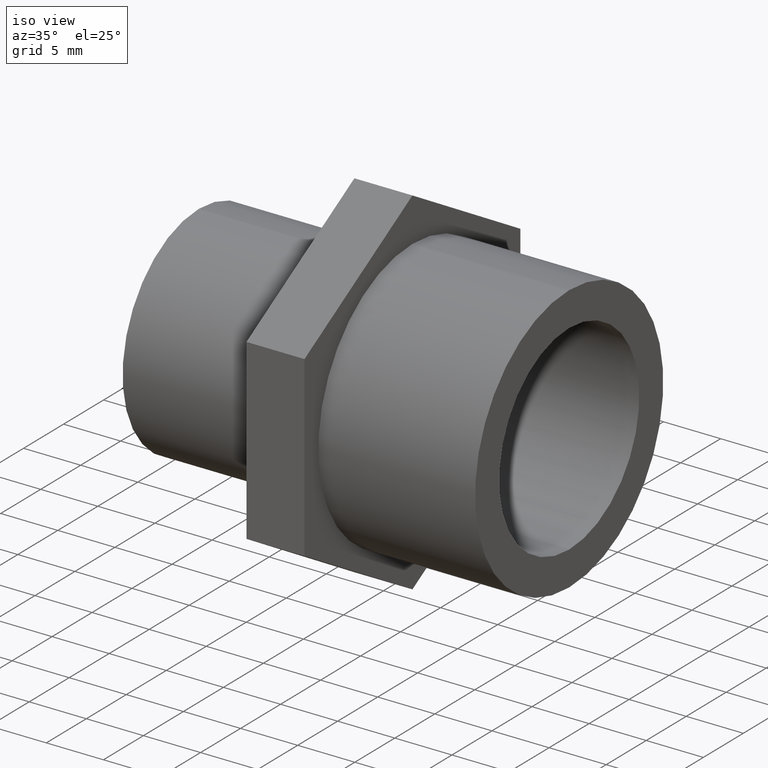
[diagram: clean part render]
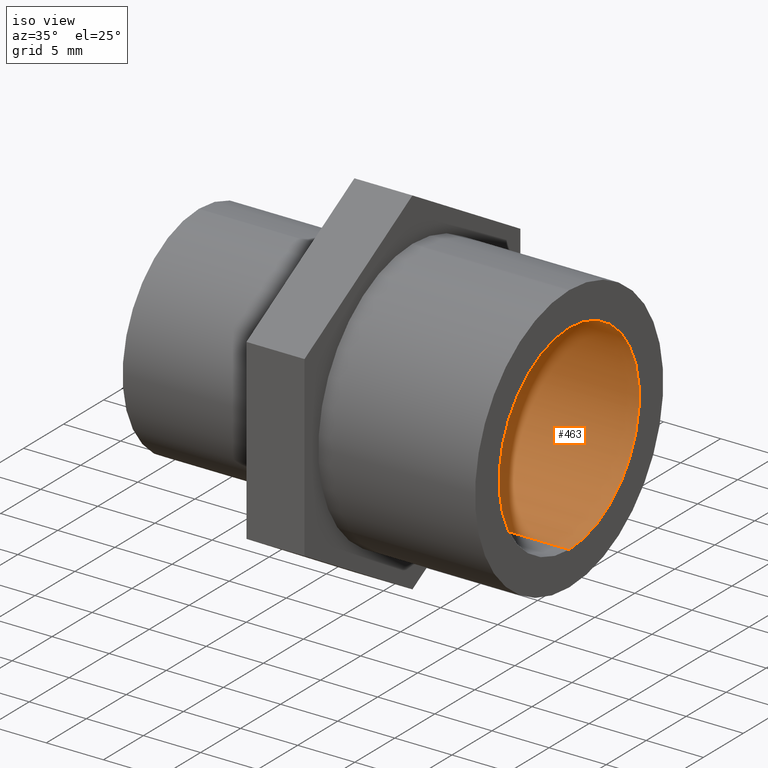
[diagram: same view with one face highlighted and labeled with its STEP entity id]
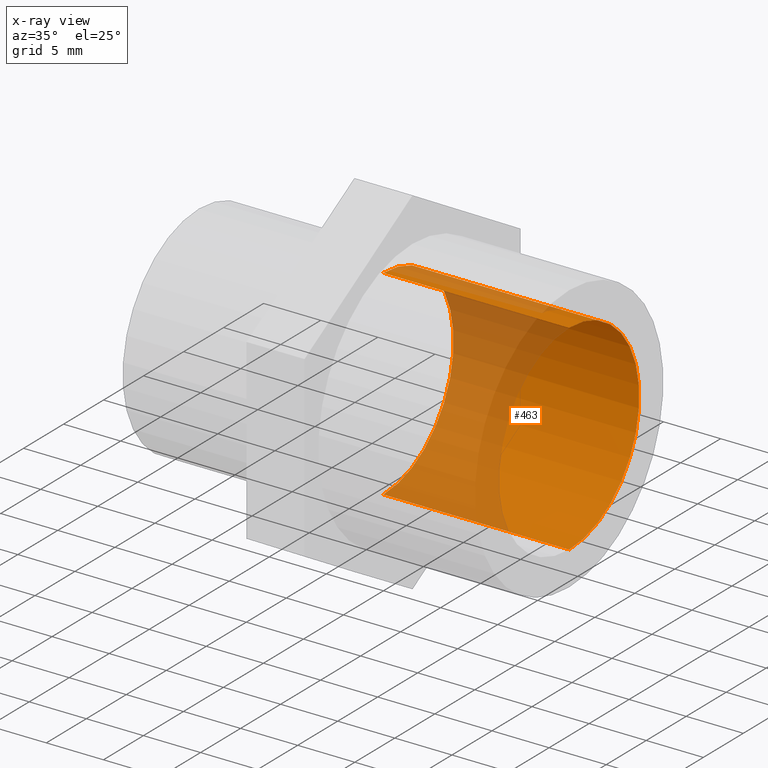
[diagram: x-ray of the same camera — body ghosted, the highlighted face saturated]
A machine part, iso view. The second image highlights one B-rep face of the part: STEP entity #463.
The next image is the same camera in x-ray: the body ghosted, the highlighted face saturated — about 44% of this face is hidden behind the body in this view.
In plain terms, the highlighted cylindrical surface (partial cylindrical patch) has radius 8.763 mm, axis along (1, -0, -0).
Its self-contained STEP definition (entity closure, byte-faithful):
#90 = EDGE_CURVE ( 'NONE', #642, #139, #473, .T. ) ;
#114 = CYLINDRICAL_SURFACE ( 'NONE', #579, 0.3449999999999999200 ) ;
#119 = ORIENTED_EDGE ( 'NONE', *, *, #90, .F. ) ;
#136 = DIRECTION ( 'NONE',  ( 0.0000000000000000000, 0.0000000000000000000, -1.000000000000000000 ) ) ;
#139 = VERTEX_POINT ( 'NONE', #617 ) ;
#154 = ORIENTED_EDGE ( 'NONE', *, *, #384, .T. ) ;
#162 = EDGE_LOOP ( 'NONE', ( #119, #318, #662, #154 ) ) ;
#230 = VERTEX_POINT ( 'NONE', #572 ) ;
#231 = DIRECTION ( 'NONE',  ( 1.000000000000000000, 0.0000000000000000000, 0.0000000000000000000 ) ) ;
#238 = DIRECTION ( 'NONE',  ( -1.000000000000000000, -0.0000000000000000000, -0.0000000000000000000 ) ) ;
#240 = DIRECTION ( 'NONE',  ( 1.000000000000000000, -0.0000000000000000000, -0.0000000000000000000 ) ) ;
#245 = CIRCLE ( 'NONE', #288, 0.3449999999999999200 ) ;
#282 = LINE ( 'NONE', #429, #385 ) ;
#288 = AXIS2_PLACEMENT_3D ( 'NONE', #521, #231, #571 ) ;
#318 = ORIENTED_EDGE ( 'NONE', *, *, #508, .T. ) ;
#384 = EDGE_CURVE ( 'NONE', #230, #139, #245, .T. ) ;
#385 = VECTOR ( 'NONE', #527, 39.37007874015748100 ) ;
#392 = DIRECTION ( 'NONE',  ( 1.000000000000000000, -0.0000000000000000000, -0.0000000000000000000 ) ) ;
#393 = FACE_OUTER_BOUND ( 'NONE', #162, .T. ) ;
#429 = CARTESIAN_POINT ( 'NONE',  ( -0.9758073580374354600, 0.0000000000000000000, -0.3449999999999999200 ) ) ;
#451 = CIRCLE ( 'NONE', #547, 0.3449999999999999200 ) ;
#452 = EDGE_CURVE ( 'NONE', #523, #230, #282, .T. ) ;
#463 = ADVANCED_FACE ( 'NONE', ( #393 ), #114, .F. ) ;
#473 = LINE ( 'NONE', #606, #580 ) ;
#481 = CARTESIAN_POINT ( 'NONE',  ( -0.9758073580374354600, 0.0000000000000000000, 0.0000000000000000000 ) ) ;
#487 = CARTESIAN_POINT ( 'NONE',  ( 0.0000000000000000000, 0.0000000000000000000, -0.3449999999999999200 ) ) ;
#508 = EDGE_CURVE ( 'NONE', #642, #523, #451, .T. ) ;
#521 = CARTESIAN_POINT ( 'NONE',  ( 0.6399999999999999000, 0.0000000000000000000, 0.0000000000000000000 ) ) ;
#523 = VERTEX_POINT ( 'NONE', #487 ) ;
#527 = DIRECTION ( 'NONE',  ( 1.000000000000000000, -0.0000000000000000000, -0.0000000000000000000 ) ) ;
#530 = CARTESIAN_POINT ( 'NONE',  ( 0.0000000000000000000, 0.0000000000000000000, 0.0000000000000000000 ) ) ;
#547 = AXIS2_PLACEMENT_3D ( 'NONE', #530, #238, #581 ) ;
#571 = DIRECTION ( 'NONE',  ( 0.0000000000000000000, 0.0000000000000000000, -1.000000000000000000 ) ) ;
#572 = CARTESIAN_POINT ( 'NONE',  ( 0.6399999999999999000, 0.0000000000000000000, -0.3449999999999999200 ) ) ;
#579 = AXIS2_PLACEMENT_3D ( 'NONE', #481, #392, #136 ) ;
#580 = VECTOR ( 'NONE', #240, 39.37007874015748100 ) ;
#581 = DIRECTION ( 'NONE',  ( 0.0000000000000000000, 0.0000000000000000000, -1.000000000000000000 ) ) ;
#594 = CARTESIAN_POINT ( 'NONE',  ( 0.0000000000000000000, 4.225031457058367800E-017, 0.3449999999999999200 ) ) ;
#606 = CARTESIAN_POINT ( 'NONE',  ( -0.9758073580374354600, 4.225031457058367800E-017, 0.3449999999999999200 ) ) ;
#617 = CARTESIAN_POINT ( 'NONE',  ( 0.6399999999999999000, 4.225031457058367800E-017, 0.3449999999999999200 ) ) ;
#642 = VERTEX_POINT ( 'NONE', #594 ) ;
#662 = ORIENTED_EDGE ( 'NONE', *, *, #452, .T. ) ;